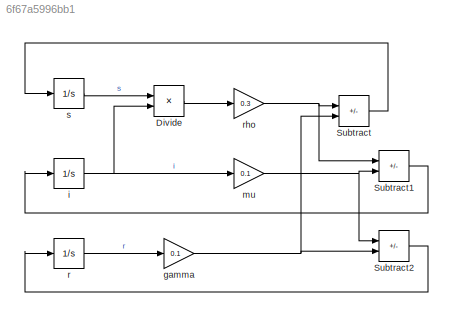
MODEL slx_6f67a5996bb1
KIND model
CONFIG AbsTol = auto
CONFIG EnableMultiTasking = off
CONFIG FixedStep = auto
CONFIG MaxStep = auto
CONFIG MinStep = auto
CONFIG RelTol = 1e-3
CONFIG SampleTimeConstraint = Unconstrained
CONFIG SolverName = VariableStepAuto
CONFIG StartTime = 0.0
CONFIG StopTime = 120
BLOCK [Product] Divide
  Inputs = **
  Ports = [2, 1]
BLOCK [Sum] Subtract
  IconShape = rectangular
  Inputs = -+
  Ports = [2, 1]
BLOCK [Sum] Subtract1
  IconShape = rectangular
  Inputs = +-
  Ports = [2, 1]
BLOCK [Sum] Subtract2
  IconShape = rectangular
  Inputs = +-
  Ports = [2, 1]
BLOCK [Gain] gamma
  Gain = 0.1
BLOCK [Integrator] i
  InitialCondition = 0.0001
  Ports = [1, 1]
BLOCK [Gain] mu
  Gain = 0.1
BLOCK [Integrator] r
  Ports = [1, 1]
BLOCK [Gain] rho
  Gain = 0.3
BLOCK [Integrator] s
  InitialCondition = 0.9999
  Ports = [1, 1]
LINE Divide:1 -> rho:1
LINE Subtract1:1 -> i:1
LINE Subtract2:1 -> r:1
LINE Subtract:1 -> s:1
NET gamma:1 -> Subtract2:2, Subtract:2
NET i:1 -> Divide:2, mu:1
NET mu:1 -> Subtract1:2, Subtract2:1
LINE r:1 -> gamma:1
NET rho:1 -> Subtract1:1, Subtract:1
LINE s:1 -> Divide:1
note: NET lines group one-source signal fan-out (src -> all destinations, sorted); 1:1 wires keep LINE
